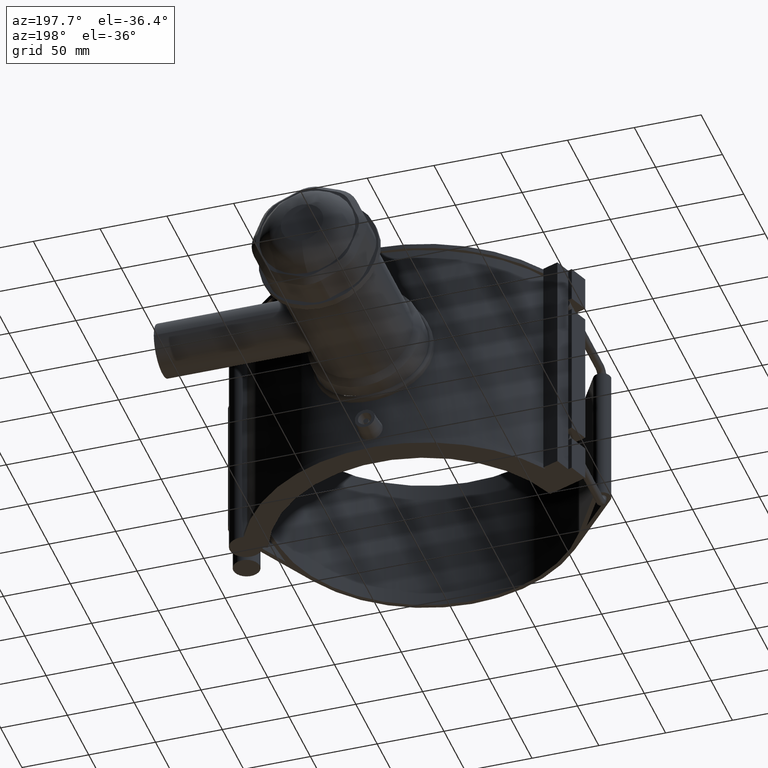
[diagram: clean part render]
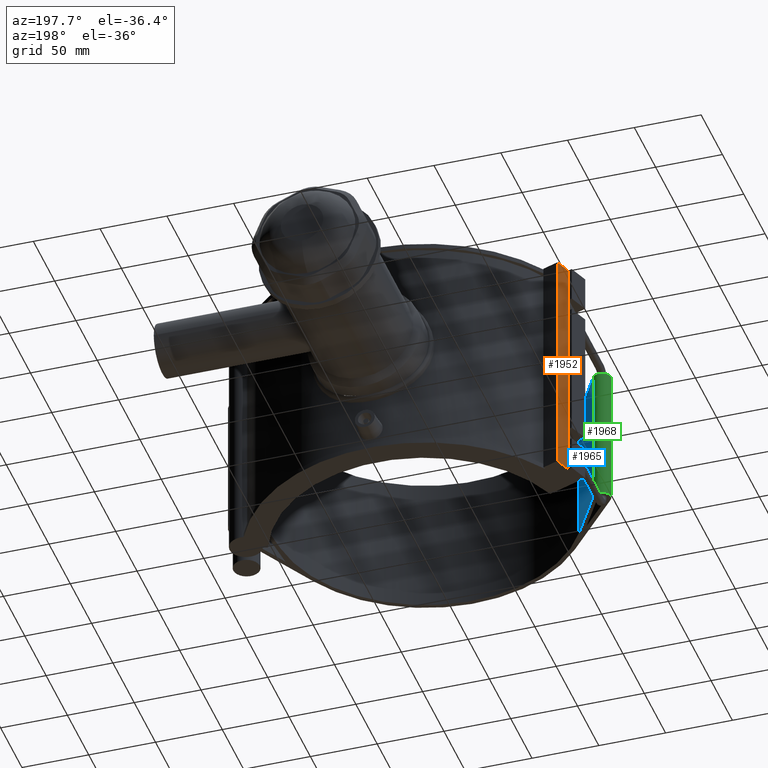
[diagram: same view with three faces highlighted in distinct colors, each labeled with its STEP entity id]
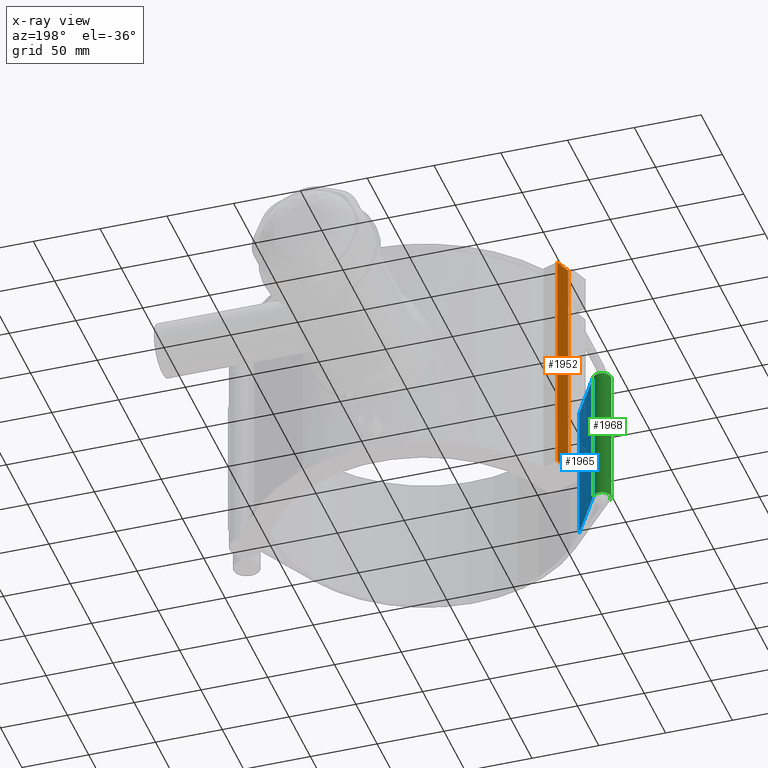
[diagram: x-ray of the same camera — body ghosted, the three highlighted faces saturated]
A machine part, auxiliary view with three faces highlighted in distinct colors.
The next image is the same camera in x-ray (body ghosted, the three faces saturated) — at least one of them is partly hidden behind the body in this view.
Their STEP definitions:

[orange] entity #1952 — the highlighted planar face has unit normal (-0.9397, 0.342, 0).
#116=LINE('',#3413,#277);
#117=LINE('',#3417,#278);
#127=LINE('',#3457,#288);
#128=LINE('',#3459,#289);
#130=LINE('',#3463,#291);
#148=LINE('',#3506,#309);
#152=LINE('',#3519,#313);
#155=LINE('',#3524,#316);
#174=LINE('',#3561,#335);
#175=LINE('',#3564,#336);
#176=LINE('',#3566,#337);
#177=LINE('',#3567,#338);
#277=VECTOR('',#2503,5.10345887572063);
#278=VECTOR('',#2506,5.10345887572067);
#288=VECTOR('',#2538,3.93327056213968);
#289=VECTOR('',#2541,0.413270562139685);
#291=VECTOR('',#2545,0.413270562139658);
#309=VECTOR('',#2585,3.93327056213968);
#313=VECTOR('',#2601,26.075);
#316=VECTOR('',#2606,104.95);
#335=VECTOR('',#2637,26.075);
#336=VECTOR('',#2640,12.6);
#337=VECTOR('',#2641,176.);
#338=VECTOR('',#2642,12.6);
#531=FACE_OUTER_BOUND('',#673,.T.);
#673=EDGE_LOOP('',(#1635,#1636,#1637,#1638,#1639,#1640,#1641,#1642,#1643,
#1644,#1645,#1646));
#919=VERTEX_POINT('',#3405);
#920=VERTEX_POINT('',#3407);
#922=VERTEX_POINT('',#3415);
#923=VERTEX_POINT('',#3416);
#931=VERTEX_POINT('',#3443);
#936=VERTEX_POINT('',#3455);
#937=VERTEX_POINT('',#3461);
#951=VERTEX_POINT('',#3502);
#954=VERTEX_POINT('',#3518);
#967=VERTEX_POINT('',#3559);
#968=VERTEX_POINT('',#3563);
#969=VERTEX_POINT('',#3565);
#1138=EDGE_CURVE('',#920,#919,#116,.T.);
#1139=EDGE_CURVE('',#922,#923,#117,.T.);
#1157=EDGE_CURVE('',#919,#936,#127,.T.);
#1158=EDGE_CURVE('',#931,#920,#128,.T.);
#1160=EDGE_CURVE('',#923,#937,#130,.T.);
#1182=EDGE_CURVE('',#951,#922,#148,.T.);
#1188=EDGE_CURVE('',#954,#931,#152,.T.);
#1191=EDGE_CURVE('',#936,#951,#155,.T.);
#1210=EDGE_CURVE('',#937,#967,#174,.T.);
#1211=EDGE_CURVE('',#967,#968,#175,.T.);
#1212=EDGE_CURVE('',#969,#968,#176,.T.);
#1213=EDGE_CURVE('',#954,#969,#177,.T.);
#1635=ORIENTED_EDGE('',*,*,#1211,.T.);
#1636=ORIENTED_EDGE('',*,*,#1212,.F.);
#1637=ORIENTED_EDGE('',*,*,#1213,.F.);
#1638=ORIENTED_EDGE('',*,*,#1188,.T.);
#1639=ORIENTED_EDGE('',*,*,#1158,.T.);
#1640=ORIENTED_EDGE('',*,*,#1138,.T.);
#1641=ORIENTED_EDGE('',*,*,#1157,.T.);
#1642=ORIENTED_EDGE('',*,*,#1191,.T.);
#1643=ORIENTED_EDGE('',*,*,#1182,.T.);
#1644=ORIENTED_EDGE('',*,*,#1139,.T.);
#1645=ORIENTED_EDGE('',*,*,#1160,.T.);
#1646=ORIENTED_EDGE('',*,*,#1210,.T.);
#1852=PLANE('',#2142);
#1952=ADVANCED_FACE('',(#531),#1852,.T.);
#2142=AXIS2_PLACEMENT_3D('',#3562,#2638,#2639);
#2503=DIRECTION('',(0.,0.,1.));
#2506=DIRECTION('',(0.,0.,1.));
#2538=DIRECTION('',(0.,0.,1.));
#2541=DIRECTION('',(0.,0.,1.));
#2545=DIRECTION('',(0.,0.,1.));
#2585=DIRECTION('',(0.,0.,1.));
#2601=DIRECTION('',(0.,0.,1.));
#2606=DIRECTION('',(0.,0.,1.));
#2637=DIRECTION('',(0.,0.,1.));
#2638=DIRECTION('center_axis',(-0.939692620785908,0.342020143325669,0.));
#2639=DIRECTION('ref_axis',(-0.342020143325669,-0.939692620785908,0.));
#2640=DIRECTION('',(0.342020143325669,0.939692620785908,0.));
#2641=DIRECTION('',(0.,0.,1.));
#2642=DIRECTION('',(0.342020143325669,0.939692620785908,0.));
#3405=CARTESIAN_POINT('',(-126.968888380316,62.9736959647984,-56.4082705621397));
#3407=CARTESIAN_POINT('',(-126.968888380316,62.9736959647984,-61.5117294378603));
#3413=CARTESIAN_POINT('',(-126.968888380316,62.9736959647984,-88.));
#3415=CARTESIAN_POINT('',(-126.968888380316,62.9736959647985,56.4082705621397));
#3416=CARTESIAN_POINT('',(-126.968888380316,62.9736959647985,61.5117294378603));
#3417=CARTESIAN_POINT('',(-126.968888380316,62.9736959647984,-88.));
#3443=CARTESIAN_POINT('',(-126.968888380316,62.9736959647984,-61.925));
#3455=CARTESIAN_POINT('',(-126.968888380316,62.9736959647984,-52.475));
#3457=CARTESIAN_POINT('',(-126.968888380316,62.9736959647984,-88.));
#3459=CARTESIAN_POINT('',(-126.968888380316,62.9736959647984,-88.));
#3461=CARTESIAN_POINT('',(-126.968888380316,62.9736959647985,61.925));
#3463=CARTESIAN_POINT('',(-126.968888380316,62.9736959647984,-88.));
#3502=CARTESIAN_POINT('',(-126.968888380316,62.9736959647985,52.475));
#3506=CARTESIAN_POINT('',(-126.968888380316,62.9736959647984,-88.));
#3518=CARTESIAN_POINT('',(-126.968888380316,62.9736959647984,-88.));
#3519=CARTESIAN_POINT('',(-126.968888380316,62.9736959647984,-88.));
#3524=CARTESIAN_POINT('',(-126.968888380316,62.9736959647984,-88.));
#3559=CARTESIAN_POINT('',(-126.968888380316,62.9736959647984,88.));
#3561=CARTESIAN_POINT('',(-126.968888380316,62.9736959647984,-88.));
#3562=CARTESIAN_POINT('Origin',(-122.659434574412,74.8138229867009,-88.));
#3563=CARTESIAN_POINT('',(-122.659434574412,74.8138229867009,88.));
#3564=CARTESIAN_POINT('',(-125.296094408077,67.5696596309246,88.));
#3565=CARTESIAN_POINT('',(-122.659434574412,74.8138229867009,-88.));
#3566=CARTESIAN_POINT('',(-122.659434574412,74.8138229867009,-88.));
#3567=CARTESIAN_POINT('',(-126.968888380316,62.9736959647984,-88.));

[blue] entity #1965 — the highlighted planar face has unit normal (0.8593, 0.5115, 0).
#104=LINE('',#3349,#265);
#109=LINE('',#3369,#270);
#193=LINE('',#3608,#354);
#194=LINE('',#3609,#355);
#265=VECTOR('',#2451,44.6632069155137);
#270=VECTOR('',#2468,44.6632069155137);
#354=VECTOR('',#2696,105.6);
#355=VECTOR('',#2697,105.6);
#544=FACE_OUTER_BOUND('',#686,.T.);
#686=EDGE_LOOP('',(#1707,#1708,#1709,#1710));
#894=VERTEX_POINT('',#3346);
#895=VERTEX_POINT('',#3348);
#903=VERTEX_POINT('',#3366);
#904=VERTEX_POINT('',#3368);
#1108=EDGE_CURVE('',#894,#895,#104,.T.);
#1118=EDGE_CURVE('',#903,#904,#109,.T.);
#1235=EDGE_CURVE('',#894,#904,#193,.T.);
#1236=EDGE_CURVE('',#895,#903,#194,.T.);
#1707=ORIENTED_EDGE('',*,*,#1235,.T.);
#1708=ORIENTED_EDGE('',*,*,#1118,.F.);
#1709=ORIENTED_EDGE('',*,*,#1236,.F.);
#1710=ORIENTED_EDGE('',*,*,#1108,.F.);
#1861=PLANE('',#2161);
#1965=ADVANCED_FACE('',(#544),#1861,.T.);
#2161=AXIS2_PLACEMENT_3D('',#3607,#2694,#2695);
#2451=DIRECTION('',(0.511479804338622,-0.859295298342616,0.));
#2468=DIRECTION('',(-0.511479804338622,0.859295298342616,0.));
#2694=DIRECTION('center_axis',(0.859295298342616,0.511479804338622,0.));
#2695=DIRECTION('ref_axis',(-0.511479804338622,0.859295298342616,0.));
#2696=DIRECTION('',(0.,0.,1.));
#2697=DIRECTION('',(0.,0.,1.));
#3346=CARTESIAN_POINT('',(-119.515049397827,-19.1625942766905,-52.8));
#3348=CARTESIAN_POINT('',(-96.6707210635443,-57.5414779880949,-52.8));
#3349=CARTESIAN_POINT('',(-96.6707210635443,-57.5414779880949,-52.8));
#3366=CARTESIAN_POINT('',(-96.6707210635443,-57.5414779880949,52.8));
#3368=CARTESIAN_POINT('',(-119.515049397827,-19.1625942766905,52.8));
#3369=CARTESIAN_POINT('',(-96.6707210635443,-57.5414779880949,52.8));
#3607=CARTESIAN_POINT('Origin',(-96.6707210635443,-57.5414779880949,0.));
#3608=CARTESIAN_POINT('',(-119.515049397827,-19.1625942766905,0.));
#3609=CARTESIAN_POINT('',(-96.6707210635443,-57.5414779880949,0.));

[green] entity #1968 — the highlighted cylindrical surface (edge-blend (fillet) strip) has radius 6.525 mm, axis along (0, 0, 1).
#192=LINE('',#3606,#353);
#193=LINE('',#3608,#354);
#353=VECTOR('',#2693,105.6);
#354=VECTOR('',#2696,105.6);
#440=CYLINDRICAL_SURFACE('',#2164,6.525);
#547=FACE_OUTER_BOUND('',#689,.T.);
#689=EDGE_LOOP('',(#1719,#1720,#1721,#1722));
#770=CIRCLE('',#2083,6.525);
#776=CIRCLE('',#2090,6.525);
#893=VERTEX_POINT('',#3344);
#894=VERTEX_POINT('',#3346);
#904=VERTEX_POINT('',#3368);
#905=VERTEX_POINT('',#3370);
#1107=EDGE_CURVE('',#893,#894,#770,.T.);
#1119=EDGE_CURVE('',#904,#905,#776,.T.);
#1234=EDGE_CURVE('',#893,#905,#192,.T.);
#1235=EDGE_CURVE('',#894,#904,#193,.T.);
#1719=ORIENTED_EDGE('',*,*,#1234,.T.);
#1720=ORIENTED_EDGE('',*,*,#1119,.F.);
#1721=ORIENTED_EDGE('',*,*,#1235,.F.);
#1722=ORIENTED_EDGE('',*,*,#1107,.F.);
#1968=ADVANCED_FACE('',(#547),#440,.T.);
#2083=AXIS2_PLACEMENT_3D('',#3347,#2449,#2450);
#2090=AXIS2_PLACEMENT_3D('',#3371,#2469,#2470);
#2164=AXIS2_PLACEMENT_3D('',#3612,#2702,#2703);
#2449=DIRECTION('center_axis',(0.,0.,-1.));
#2450=DIRECTION('ref_axis',(-1.,0.,0.));
#2469=DIRECTION('center_axis',(0.,0.,1.));
#2470=DIRECTION('ref_axis',(-1.,0.,0.));
#2693=DIRECTION('',(0.,0.,1.));
#2696=DIRECTION('',(0.,0.,1.));
#2702=DIRECTION('center_axis',(0.,0.,1.));
#2703=DIRECTION('ref_axis',(-1.,0.,0.));
#3344=CARTESIAN_POINT('',(-130.056822313878,-26.7688022069422,-52.8));
#3346=CARTESIAN_POINT('',(-119.515049397827,-19.1625942766905,-52.8));
#3347=CARTESIAN_POINT('Origin',(-125.121951219512,-22.5,-52.8));
#3368=CARTESIAN_POINT('',(-119.515049397827,-19.1625942766905,52.8));
#3370=CARTESIAN_POINT('',(-130.056822313878,-26.7688022069422,52.8));
#3371=CARTESIAN_POINT('Origin',(-125.121951219512,-22.5,52.8));
#3606=CARTESIAN_POINT('',(-130.056822313878,-26.7688022069422,0.));
#3608=CARTESIAN_POINT('',(-119.515049397827,-19.1625942766905,0.));
#3612=CARTESIAN_POINT('Origin',(-125.121951219512,-22.5,0.));